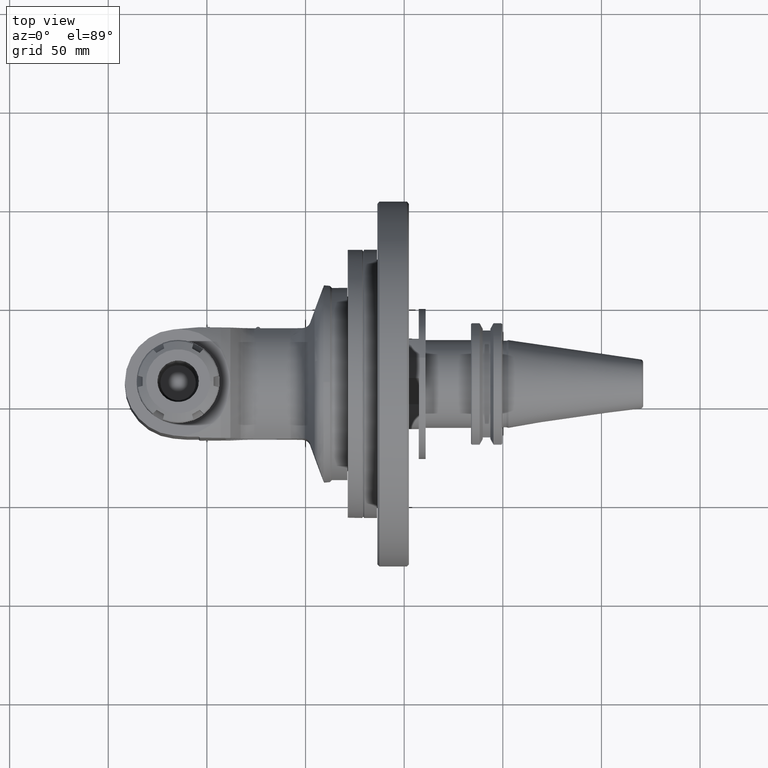
[diagram: clean part render]
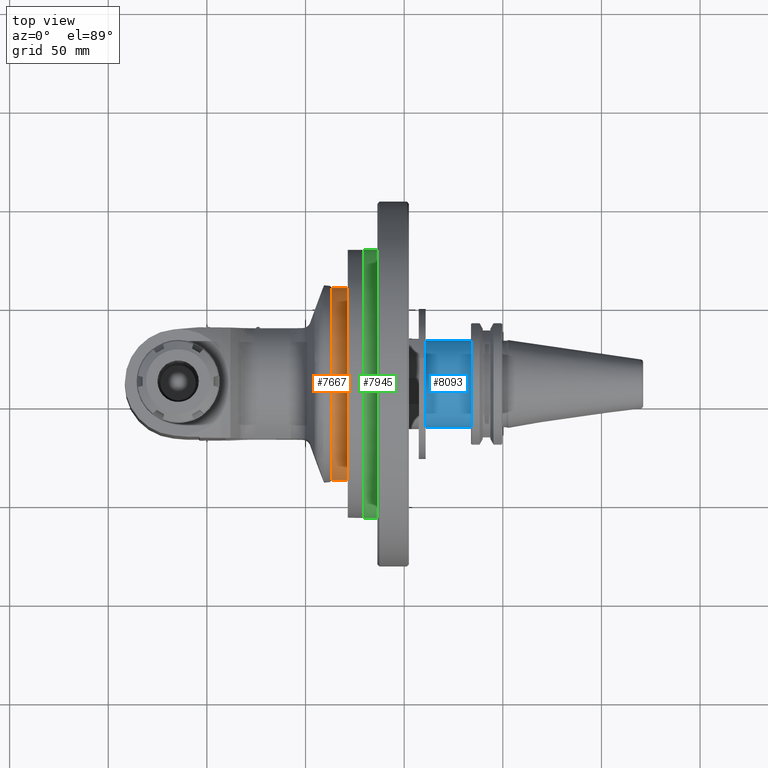
[diagram: same view with three faces highlighted in distinct colors, each labeled with its STEP entity id]
A machine part, top view with three faces highlighted in distinct colors.
Their STEP definitions:

[orange] entity #7667 — the highlighted cylindrical surface (bore or boss wall) has radius 49 mm, axis along (-1, -0, -0).
#486=CYLINDRICAL_SURFACE('',#8272,1.92913385826772);
#635=CIRCLE('',#8270,1.92913385826772);
#636=CIRCLE('',#8271,1.92913385826772);
#637=CIRCLE('',#8273,1.92913385826772);
#999=FACE_OUTER_BOUND('',#1484,.T.);
#1484=EDGE_LOOP('',(#5318,#5319,#5320,#5321,#5322));
#2043=LINE('',#12099,#2608);
#2608=VECTOR('',#9298,1.92913385826772);
#3250=VERTEX_POINT('',#12092);
#3251=VERTEX_POINT('',#12094);
#3252=VERTEX_POINT('',#12098);
#4055=EDGE_CURVE('',#3250,#3251,#635,.T.);
#4056=EDGE_CURVE('',#3251,#3250,#636,.T.);
#4057=EDGE_CURVE('',#3251,#3252,#2043,.T.);
#4058=EDGE_CURVE('',#3252,#3252,#637,.T.);
#5318=ORIENTED_EDGE('',*,*,#4056,.F.);
#5319=ORIENTED_EDGE('',*,*,#4057,.T.);
#5320=ORIENTED_EDGE('',*,*,#4058,.F.);
#5321=ORIENTED_EDGE('',*,*,#4057,.F.);
#5322=ORIENTED_EDGE('',*,*,#4055,.F.);
#7667=ADVANCED_FACE('',(#999),#486,.T.);
#8270=AXIS2_PLACEMENT_3D('',#12095,#9292,#9293);
#8271=AXIS2_PLACEMENT_3D('',#12096,#9294,#9295);
#8272=AXIS2_PLACEMENT_3D('',#12097,#9296,#9297);
#8273=AXIS2_PLACEMENT_3D('',#12100,#9299,#9300);
#9292=DIRECTION('center_axis',(1.,0.,0.));
#9293=DIRECTION('ref_axis',(0.,-1.,0.));
#9294=DIRECTION('center_axis',(1.,0.,0.));
#9295=DIRECTION('ref_axis',(0.,-1.,0.));
#9296=DIRECTION('center_axis',(1.,0.,0.));
#9297=DIRECTION('ref_axis',(0.,0.087155742747664,-0.996194698091745));
#9298=DIRECTION('',(-1.,0.,0.));
#9299=DIRECTION('center_axis',(-1.,0.,0.));
#9300=DIRECTION('ref_axis',(0.,-0.087155742747664,0.996194698091745));
#12092=CARTESIAN_POINT('',(0.393700787401495,1.92913385826772,2.36250760465434E-16));
#12094=CARTESIAN_POINT('',(0.393700787401496,-0.168135094276969,1.92179292151575));
#12095=CARTESIAN_POINT('Origin',(0.393700787401496,0.,0.));
#12096=CARTESIAN_POINT('Origin',(0.393700787401496,0.,0.));
#12097=CARTESIAN_POINT('Origin',(0.240157480314882,0.,0.));
#12098=CARTESIAN_POINT('',(0.0866141732283465,-0.168135094276969,1.92179292151575));
#12099=CARTESIAN_POINT('',(0.240157480314882,-0.16813509427699,1.92179292151557));
#12100=CARTESIAN_POINT('Origin',(0.0866141732283465,0.,0.));

[blue] entity #8093 — the highlighted cylindrical surface (bore or boss wall) has radius 22.225 mm, axis along (-1, 0, 0).
#584=CYLINDRICAL_SURFACE('',#9021,0.875);
#903=CIRCLE('',#8947,0.875);
#941=CIRCLE('',#9022,0.875);
#1425=FACE_OUTER_BOUND('',#1986,.T.);
#1986=EDGE_LOOP('',(#7315,#7316,#7317,#7318));
#2554=LINE('',#14645,#3119);
#3119=VECTOR('',#11309,0.875);
#3835=VERTEX_POINT('',#14420);
#3877=VERTEX_POINT('',#14643);
#4954=EDGE_CURVE('',#3835,#3835,#903,.T.);
#5026=EDGE_CURVE('',#3877,#3877,#941,.T.);
#5027=EDGE_CURVE('',#3877,#3835,#2554,.T.);
#7315=ORIENTED_EDGE('',*,*,#5026,.F.);
#7316=ORIENTED_EDGE('',*,*,#5027,.T.);
#7317=ORIENTED_EDGE('',*,*,#4954,.F.);
#7318=ORIENTED_EDGE('',*,*,#5027,.F.);
#8093=ADVANCED_FACE('',(#1425),#584,.T.);
#8947=AXIS2_PLACEMENT_3D('',#14421,#11131,#11132);
#9021=AXIS2_PLACEMENT_3D('',#14642,#11305,#11306);
#9022=AXIS2_PLACEMENT_3D('',#14644,#11307,#11308);
#11131=DIRECTION('center_axis',(1.,0.,0.));
#11132=DIRECTION('ref_axis',(0.,1.,0.));
#11305=DIRECTION('center_axis',(-1.,0.,0.));
#11306=DIRECTION('ref_axis',(0.,1.,0.));
#11307=DIRECTION('center_axis',(-1.,0.,0.));
#11308=DIRECTION('ref_axis',(0.,-1.,0.));
#11309=DIRECTION('',(1.,0.,0.));
#14420=CARTESIAN_POINT('',(0.903543307086614,-0.875,1.07156594925393E-16));
#14421=CARTESIAN_POINT('Origin',(0.903543307086614,0.,0.));
#14642=CARTESIAN_POINT('Origin',(0.687992125984252,0.,0.));
#14643=CARTESIAN_POINT('',(-6.99353086378051E-16,-0.875,1.07156594925393E-16));
#14644=CARTESIAN_POINT('Origin',(-6.99353086377953E-16,0.,0.));
#14645=CARTESIAN_POINT('',(0.687992125984252,-0.875,1.07156594925393E-16));

[green] entity #7945 — the highlighted cylindrical surface (bore or boss wall) has radius 68.1 mm, axis along (1, 0, 0).
#540=CYLINDRICAL_SURFACE('',#8742,2.68110236220472);
#810=CIRCLE('',#8741,2.68110236220472);
#811=CIRCLE('',#8743,2.68110236220472);
#1277=FACE_OUTER_BOUND('',#1804,.T.);
#1804=EDGE_LOOP('',(#6644,#6645,#6646,#6647));
#2397=LINE('',#13749,#2962);
#2962=VECTOR('',#10594,2.68110236220472);
#3660=VERTEX_POINT('',#13744);
#3661=VERTEX_POINT('',#13747);
#4694=EDGE_CURVE('',#3660,#3660,#810,.T.);
#4695=EDGE_CURVE('',#3661,#3661,#811,.T.);
#4696=EDGE_CURVE('',#3661,#3660,#2397,.T.);
#6644=ORIENTED_EDGE('',*,*,#4695,.T.);
#6645=ORIENTED_EDGE('',*,*,#4696,.T.);
#6646=ORIENTED_EDGE('',*,*,#4694,.F.);
#6647=ORIENTED_EDGE('',*,*,#4696,.F.);
#7945=ADVANCED_FACE('',(#1277),#540,.T.);
#8741=AXIS2_PLACEMENT_3D('',#13745,#10588,#10589);
#8742=AXIS2_PLACEMENT_3D('',#13746,#10590,#10591);
#8743=AXIS2_PLACEMENT_3D('',#13748,#10592,#10593);
#10588=DIRECTION('center_axis',(1.,0.,0.));
#10589=DIRECTION('ref_axis',(0.,1.,0.));
#10590=DIRECTION('center_axis',(-1.,0.,0.));
#10591=DIRECTION('ref_axis',(0.,-1.,0.));
#10592=DIRECTION('center_axis',(1.,0.,0.));
#10593=DIRECTION('ref_axis',(0.,1.,0.));
#10594=DIRECTION('',(1.,0.,0.));
#13744=CARTESIAN_POINT('',(-0.248031496062992,2.68110236220472,-3.28340342606042E-16));
#13745=CARTESIAN_POINT('Origin',(-0.248031496062992,0.,0.));
#13746=CARTESIAN_POINT('Origin',(7.71717252011811,0.,0.));
#13747=CARTESIAN_POINT('',(-0.503937007874016,2.68110236220472,-3.28340342606042E-16));
#13748=CARTESIAN_POINT('Origin',(-0.503937007874016,0.,0.));
#13749=CARTESIAN_POINT('',(7.71717252011811,2.68110236220472,-3.28340342606042E-16));